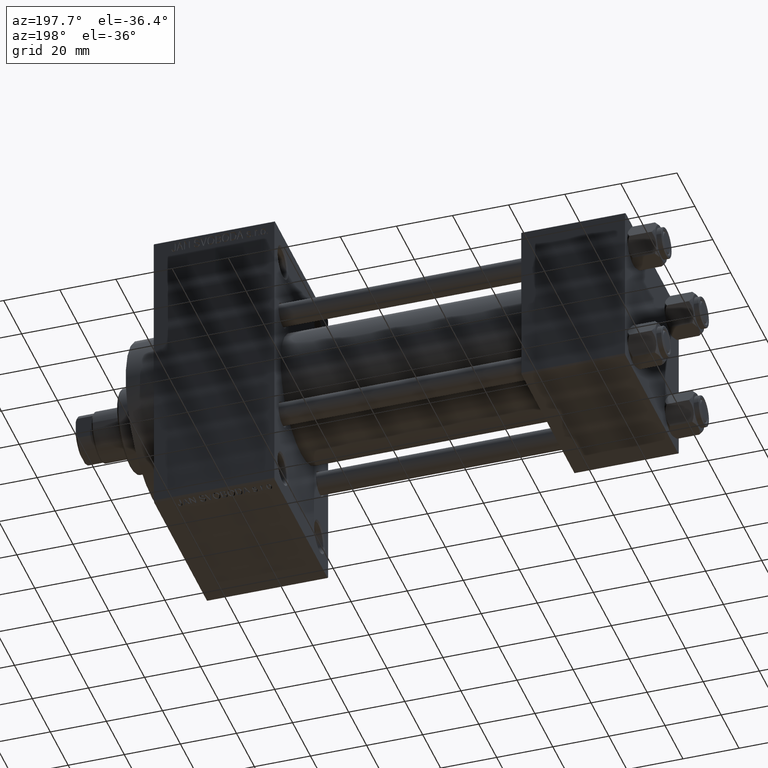
[diagram: clean part render]
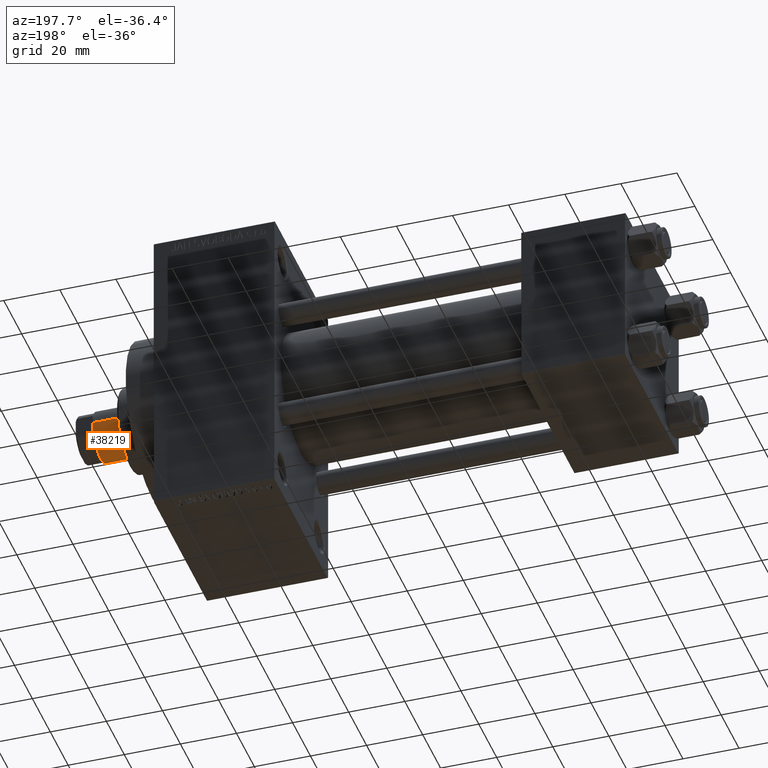
[diagram: same view with one face highlighted and labeled with its STEP entity id]
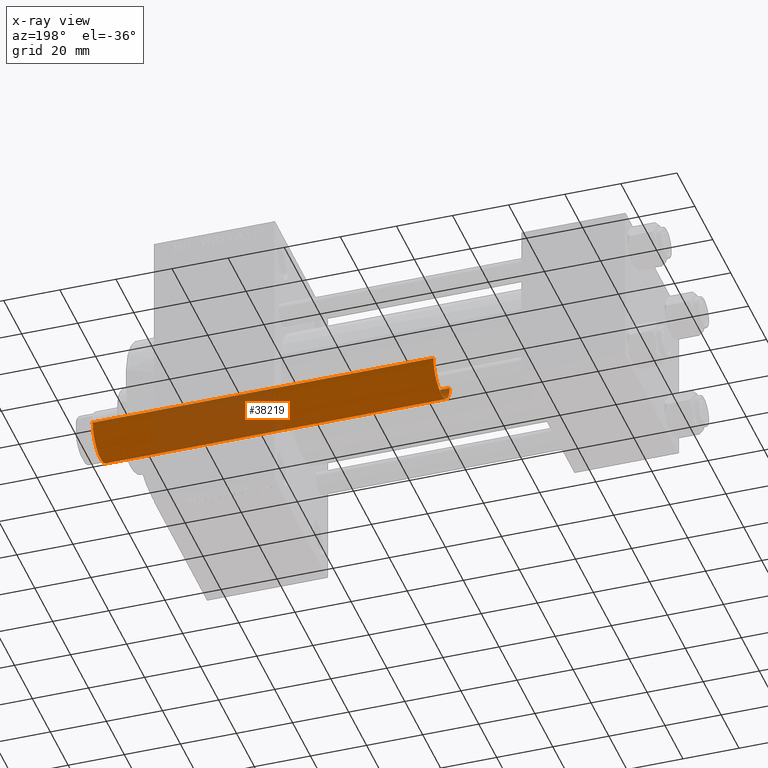
[diagram: x-ray of the same camera — body ghosted, the highlighted face saturated]
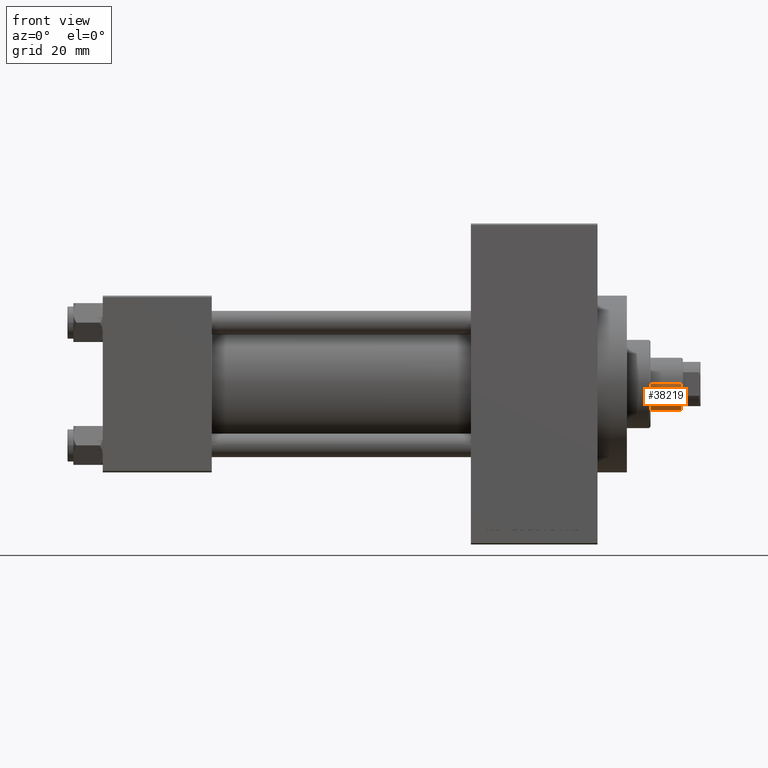
[diagram: same view with one face highlighted and labeled with its STEP entity id]
A machine part, auxiliary view. The second image highlights one B-rep face of the part: STEP entity #38219.
The next image is the same camera in x-ray: the body ghosted, the highlighted face saturated — about 38% of this face is hidden behind the body in this view.
A second angle (front view) of the same face is appended — the face is thin or edge-on in the first view.
In plain terms, the highlighted cylindrical surface (edge-blend (fillet) strip) has radius 9 mm, axis along (-1, 0, 0).
Its self-contained STEP definition (entity closure, byte-faithful):
#335 = DIRECTION ( 'NONE',  ( -1.000000000000000000, 0.000000000000000000, 0.000000000000000000 ) ) ;
#1222 = DIRECTION ( 'NONE',  ( 0.000000000000000000, 0.000000000000000000, 1.000000000000000000 ) ) ;
#2240 = CARTESIAN_POINT ( 'NONE',  ( 9.000000000000000000, 1.102182119232617517E-15, 160.0000000000000000 ) ) ;
#2546 = AXIS2_PLACEMENT_3D ( 'NONE', #33192, #29832, #335 ) ;
#3397 = ORIENTED_EDGE ( 'NONE', *, *, #27749, .T. ) ;
#3927 = FACE_OUTER_BOUND ( 'NONE', #32822, .T. ) ;
#5121 = VERTEX_POINT ( 'NONE', #39582 ) ;
#5409 = CARTESIAN_POINT ( 'NONE',  ( 9.000000000000000000, 1.102182119232617517E-15, 38.00000000000000000 ) ) ;
#5835 = LINE ( 'NONE', #2240, #37374 ) ;
#6298 = LINE ( 'NONE', #18014, #38615 ) ;
#6530 = ORIENTED_EDGE ( 'NONE', *, *, #19360, .T. ) ;
#6882 = CIRCLE ( 'NONE', #9940, 9.000000000000000000 ) ;
#7973 = DIRECTION ( 'NONE',  ( 0.000000000000000000, 0.000000000000000000, -1.000000000000000000 ) ) ;
#9633 = ORIENTED_EDGE ( 'NONE', *, *, #40664, .F. ) ;
#9940 = AXIS2_PLACEMENT_3D ( 'NONE', #18537, #7973, #37274 ) ;
#13482 = DIRECTION ( 'NONE',  ( -0.000000000000000000, -0.000000000000000000, -1.000000000000000000 ) ) ;
#15360 = DIRECTION ( 'NONE',  ( 1.000000000000000000, 0.000000000000000000, 0.000000000000000000 ) ) ;
#18014 = CARTESIAN_POINT ( 'NONE',  ( -9.000000000000000000, 0.000000000000000000, 160.0000000000000000 ) ) ;
#18537 = CARTESIAN_POINT ( 'NONE',  ( 0.000000000000000000, 0.000000000000000000, 159.5000000000000853 ) ) ;
#18549 = CYLINDRICAL_SURFACE ( 'NONE', #2546, 9.000000000000000000 ) ;
#19360 = EDGE_CURVE ( 'NONE', #5121, #41078, #5835, .T. ) ;
#19667 = ORIENTED_EDGE ( 'NONE', *, *, #47141, .T. ) ;
#27749 = EDGE_CURVE ( 'NONE', #31613, #5121, #6882, .T. ) ;
#27888 = CARTESIAN_POINT ( 'NONE',  ( -9.000000000000000000, 0.000000000000000000, 159.5000000000000853 ) ) ;
#29832 = DIRECTION ( 'NONE',  ( -0.000000000000000000, -0.000000000000000000, -1.000000000000000000 ) ) ;
#31613 = VERTEX_POINT ( 'NONE', #27888 ) ;
#32822 = EDGE_LOOP ( 'NONE', ( #3397, #6530, #19667, #9633 ) ) ;
#33192 = CARTESIAN_POINT ( 'NONE',  ( 0.000000000000000000, 0.000000000000000000, 160.0000000000000000 ) ) ;
#35643 = CARTESIAN_POINT ( 'NONE',  ( -9.000000000000000000, 0.000000000000000000, 38.00000000000000000 ) ) ;
#37274 = DIRECTION ( 'NONE',  ( 1.000000000000000000, 0.000000000000000000, 0.000000000000000000 ) ) ;
#37354 = VERTEX_POINT ( 'NONE', #35643 ) ;
#37374 = VECTOR ( 'NONE', #42563, 1000.000000000000000 ) ;
#38219 = ADVANCED_FACE ( 'NONE', ( #3927 ), #18549, .T. ) ;
#38615 = VECTOR ( 'NONE', #13482, 1000.000000000000000 ) ;
#39582 = CARTESIAN_POINT ( 'NONE',  ( 9.000000000000000000, 1.102182119232617517E-15, 159.5000000000000853 ) ) ;
#39928 = AXIS2_PLACEMENT_3D ( 'NONE', #45368, #1222, #15360 ) ;
#40664 = EDGE_CURVE ( 'NONE', #31613, #37354, #6298, .T. ) ;
#41078 = VERTEX_POINT ( 'NONE', #5409 ) ;
#42238 = CIRCLE ( 'NONE', #39928, 9.000000000000000000 ) ;
#42563 = DIRECTION ( 'NONE',  ( -0.000000000000000000, -0.000000000000000000, -1.000000000000000000 ) ) ;
#45368 = CARTESIAN_POINT ( 'NONE',  ( 0.000000000000000000, 0.000000000000000000, 38.00000000000000000 ) ) ;
#47141 = EDGE_CURVE ( 'NONE', #41078, #37354, #42238, .T. ) ;